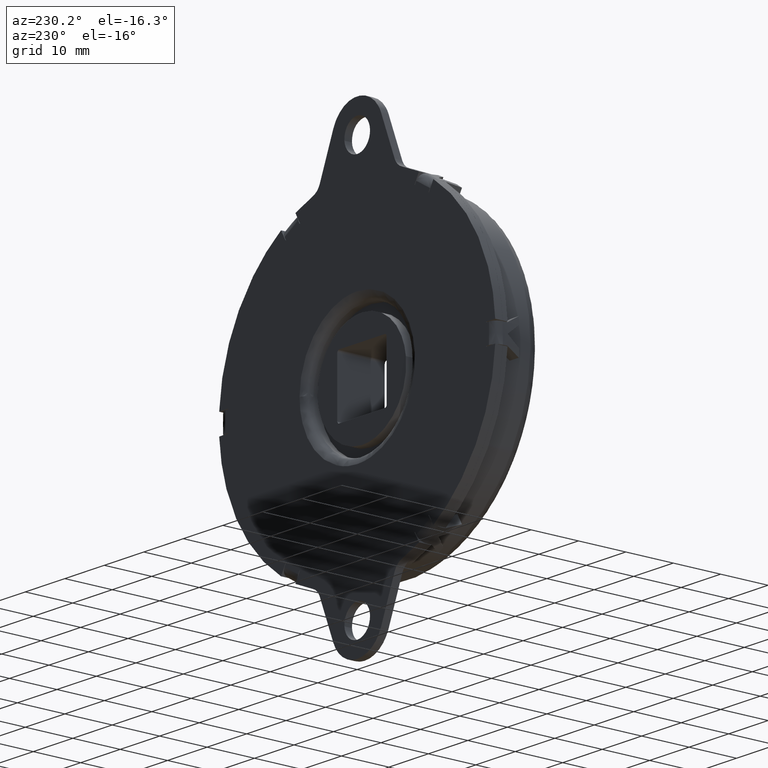
[diagram: clean part render]
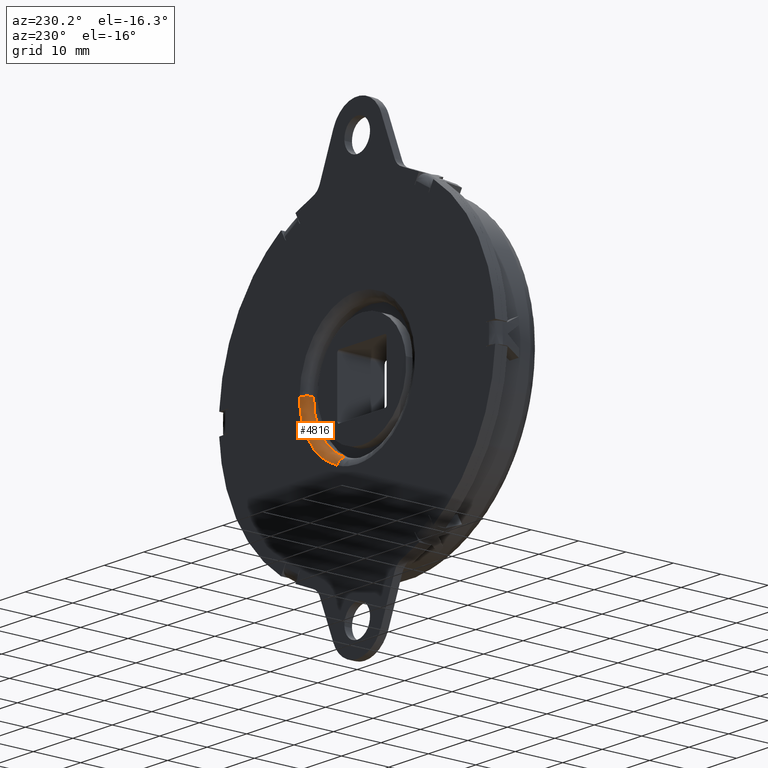
[diagram: same view with one face highlighted and labeled with its STEP entity id]
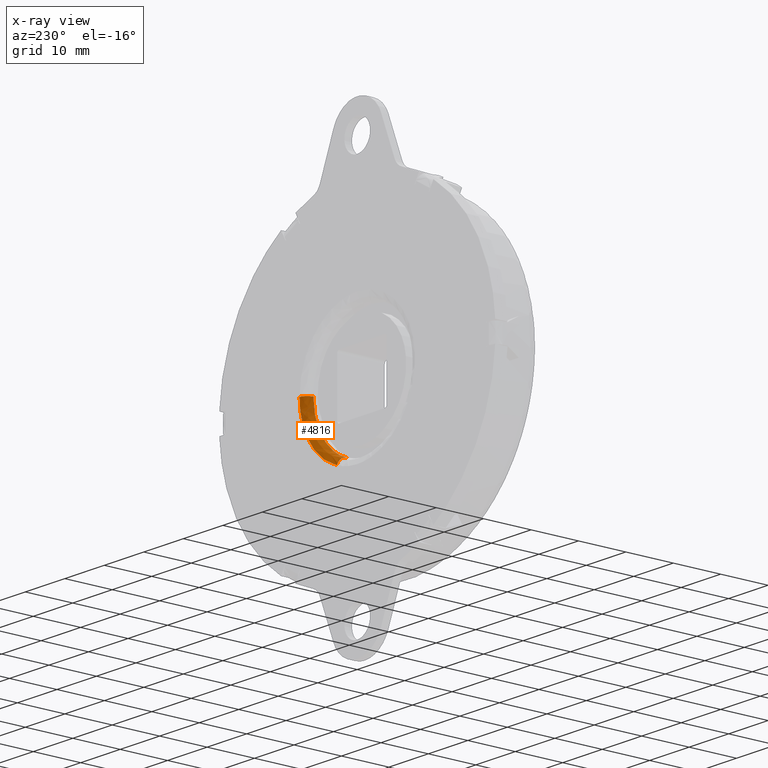
[diagram: x-ray of the same camera — body ghosted, the highlighted face saturated]
A machine part, auxiliary view. The second image highlights one B-rep face of the part: STEP entity #4816.
The next image is the same camera in x-ray: the body ghosted, the highlighted face saturated — about 0% of this face is hidden behind the body in this view.
In plain terms, the highlighted face is a freeform B-spline surface patch.
Its self-contained STEP definition (entity closure, byte-faithful):
#2042=CARTESIAN_POINT('',(13.0,-1.599999999917827,8.881784E-016));
#2043=VERTEX_POINT('',#2042);
#2057=CARTESIAN_POINT('',(4.592925566591958,-1.599999999904426,-12.161621386137041));
#2058=VERTEX_POINT('',#2057);
#2059=CARTESIAN_POINT('',(13.0,-1.599999999917827,8.881784E-016));
#2060=CARTESIAN_POINT('',(13.0,-1.600000000000000,-8.986628029613197));
#2061=CARTESIAN_POINT('',(4.592925566591958,-1.599999999904426,-12.161621386137044));
#2069=(BOUNDED_CURVE()B_SPLINE_CURVE(2,(#2059,#2060,#2061),.UNSPECIFIED.,.F.,.U.)B_SPLINE_CURVE_WITH_KNOTS((3,3),(0.250000000000000,0.439999999999724),.UNSPECIFIED.)CURVE()GEOMETRIC_REPRESENTATION_ITEM()RATIONAL_B_SPLINE_CURVE((1.0,0.777401153702100,0.893152553776516))REPRESENTATION_ITEM(''));
#2070=EDGE_CURVE('',#2043,#2058,#2069,.T.);
#4699=CARTESIAN_POINT('',(5.158208712719345,-3.168183E-016,-13.658436324283031));
#4700=VERTEX_POINT('',#4699);
#4701=CARTESIAN_POINT('',(5.158208712719346,-3.168183E-016,-13.658436324283029));
#4702=CARTESIAN_POINT('',(4.592925566648834,-3.529600E-009,-12.161621386319885));
#4703=CARTESIAN_POINT('',(4.592925566591959,-1.599999999904426,-12.161621386137043));
#4711=(BOUNDED_CURVE()B_SPLINE_CURVE(2,(#4701,#4702,#4703),.UNSPECIFIED.,.F.,.U.)B_SPLINE_CURVE_WITH_KNOTS((3,3),(-1.726807297260244,-0.285995334166416),.UNSPECIFIED.)CURVE()GEOMETRIC_REPRESENTATION_ITEM()RATIONAL_B_SPLINE_CURVE((0.788465049198699,0.556079850783704,0.784371609224260))REPRESENTATION_ITEM(''));
#4712=EDGE_CURVE('',#4700,#2058,#4711,.T.);
#4746=CARTESIAN_POINT('',(14.599999999491461,-2.829671E-016,-8.881784E-016));
#4747=VERTEX_POINT('',#4746);
#4761=CARTESIAN_POINT('',(14.599999999491464,-2.829671E-016,-8.881784E-016));
#4762=CARTESIAN_POINT('',(13.000000000164340,-1.017073E-009,0.0));
#4763=CARTESIAN_POINT('',(13.000000000000002,-1.599999999917828,8.881784E-016));
#4771=(BOUNDED_CURVE()B_SPLINE_CURVE(2,(#4761,#4762,#4763),.UNSPECIFIED.,.F.,.U.)B_SPLINE_CURVE_WITH_KNOTS((3,3),(-1.726807298864278,-0.285995334149394),.UNSPECIFIED.)CURVE()GEOMETRIC_REPRESENTATION_ITEM()RATIONAL_B_SPLINE_CURVE((0.882788775984525,0.622603437873322,0.878205639017435))REPRESENTATION_ITEM(''));
#4772=EDGE_CURVE('',#4747,#2043,#4771,.T.);
#4781=CARTESIAN_POINT('',(14.710961392556108,-0.003852272074415,-9.776624E-017));
#4782=CARTESIAN_POINT('',(14.710961392556106,-0.003852272074415,-10.169379681478823));
#4783=CARTESIAN_POINT('',(5.197411799266701,-0.003852272074415,-13.762241666317278));
#4784=CARTESIAN_POINT('',(12.875617029327616,0.123737651339824,-2.101450E-016));
#4785=CARTESIAN_POINT('',(12.875617029327614,0.123737651339824,-8.900644540526255));
#4786=CARTESIAN_POINT('',(4.548981000312378,0.123737651339824,-12.045259886972479));
#4787=CARTESIAN_POINT('',(13.003893916962960,-1.711558826150943,-2.022905E-016));
#4788=CARTESIAN_POINT('',(13.003893916962960,-1.711558826150941,-8.989319667862413));
#4789=CARTESIAN_POINT('',(4.594301478803097,-1.711558826150942,-12.165264112443014));
#4797=(BOUNDED_SURFACE()B_SPLINE_SURFACE(2,2,((#4781,#4784,#4787),(#4782,#4785,#4788),(#4783,#4786,#4789)),.UNSPECIFIED.,.F.,.F.,.U.)B_SPLINE_SURFACE_WITH_KNOTS((3,3),(3,3),(0.0,18.342902589771779),(0.0,2.915793252310496),.UNSPECIFIED.)GEOMETRIC_REPRESENTATION_ITEM()RATIONAL_B_SPLINE_SURFACE(((0.910068306171672,0.595552889134684,0.905027207999015),(0.707488153707325,0.462983504767256,0.703569198157896),(0.812829829124876,0.531919582109758,0.808327359432771)))REPRESENTATION_ITEM('')SURFACE());
#4798=ORIENTED_EDGE('',*,*,#2070,.F.);
#4799=ORIENTED_EDGE('',*,*,#4772,.F.);
#4800=CARTESIAN_POINT('',(5.158208712719345,-3.168183E-016,-13.658436324283025));
#4801=CARTESIAN_POINT('',(14.599999999999987,0.0,-10.092674556187211));
#4802=CARTESIAN_POINT('',(14.599999999491464,-2.829671E-016,-8.881784E-016));
#4810=(BOUNDED_CURVE()B_SPLINE_CURVE(2,(#4800,#4801,#4802),.UNSPECIFIED.,.F.,.U.)B_SPLINE_CURVE_WITH_KNOTS((3,3),(0.560000000002437,0.750000000000000),.UNSPECIFIED.)CURVE()GEOMETRIC_REPRESENTATION_ITEM()RATIONAL_B_SPLINE_CURVE((0.893152553773884,0.777401153704631,1.000000000000000))REPRESENTATION_ITEM(''));
#4811=EDGE_CURVE('',#4700,#4747,#4810,.T.);
#4812=ORIENTED_EDGE('',*,*,#4811,.F.);
#4813=ORIENTED_EDGE('',*,*,#4712,.T.);
#4814=EDGE_LOOP('',(#4798,#4799,#4812,#4813));
#4815=FACE_OUTER_BOUND('',#4814,.T.);
#4816=ADVANCED_FACE('',(#4815),#4797,.T.);